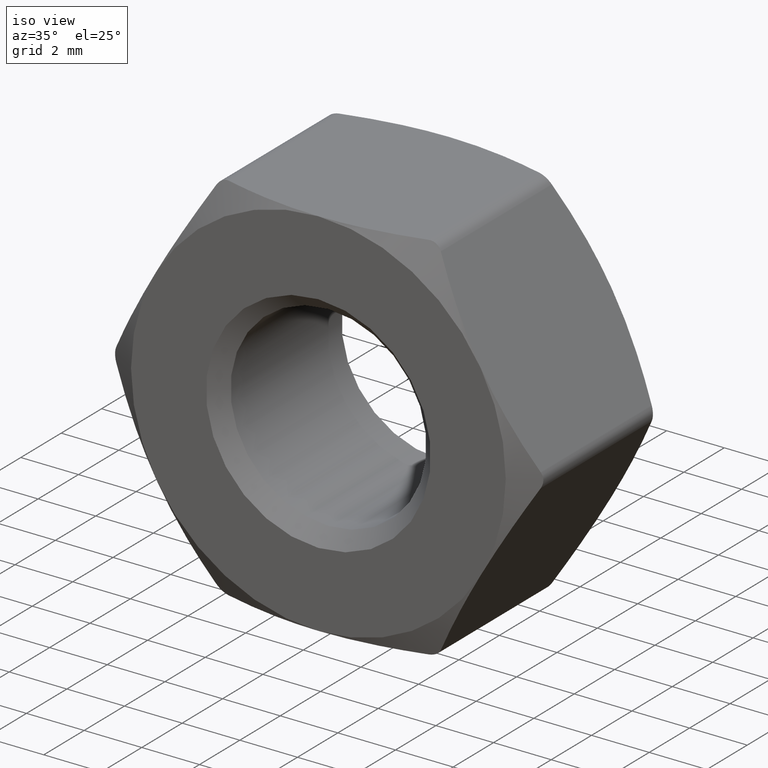
[diagram: clean part render]
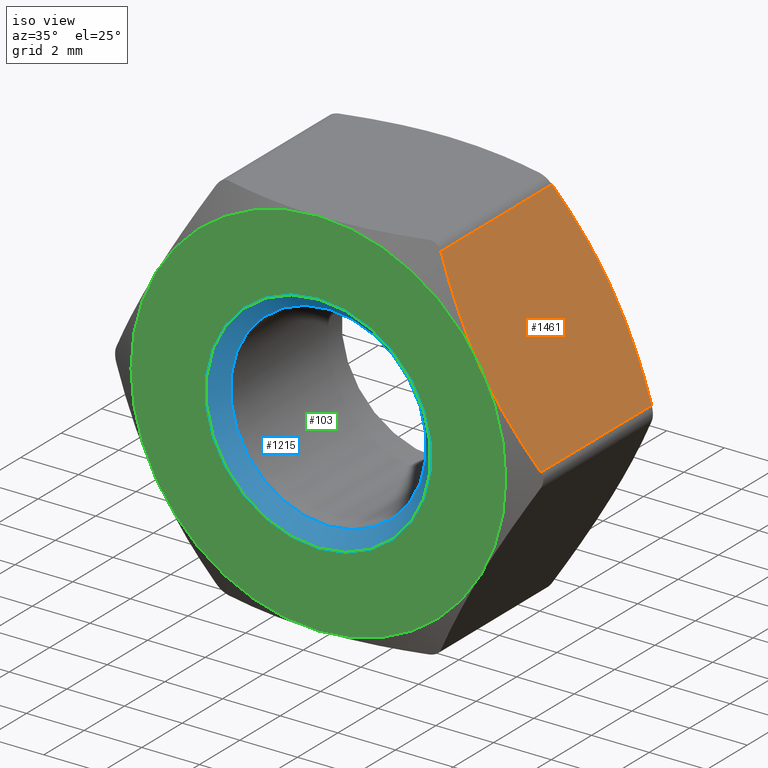
[diagram: same view with three faces highlighted in distinct colors, each labeled with its STEP entity id]
A machine part, iso view with three faces highlighted in distinct colors.
Their STEP definitions:

[orange] entity #1461 — the highlighted planar face has unit normal (-0.866, 0, -0.5).
#20 = EDGE_LOOP ( 'NONE', ( #233, #1431, #68, #1369, #69, #540 ) ) ;
#63 = CARTESIAN_POINT ( 'NONE',  ( 3.897114317028946000, -2.750326475674316700, 6.250000000001792300 ) ) ;
#68 = ORIENTED_EDGE ( 'NONE', *, *, #1031, .T. ) ;
#69 = ORIENTED_EDGE ( 'NONE', *, *, #1279, .T. ) ;
#82 = EDGE_CURVE ( 'NONE', #118, #971, #1128, .T. ) ;
#110 = CARTESIAN_POINT ( 'NONE',  ( 5.923365020047807400, -3.238358288205307000, 2.740430833500970800 ) ) ;
#114 = CARTESIAN_POINT ( 'NONE',  ( 5.629165124598850800, 3.249999999999999100, 3.249999999999999600 ) ) ;
#118 = VERTEX_POINT ( 'NONE', #144 ) ;
#126 = CARTESIAN_POINT ( 'NONE',  ( 6.218478719796789500, 3.250000000000000400, 2.229278911526101600 ) ) ;
#141 = CARTESIAN_POINT ( 'NONE',  ( 3.897114317029982000, 3.250000000000000000, 6.249999999999997300 ) ) ;
#144 = CARTESIAN_POINT ( 'NONE',  ( 5.629165124598850800, 3.249999999999999100, 3.249999999999999600 ) ) ;
#145 = DIRECTION ( 'NONE',  ( 0.0000000000000000000, -1.000000000000000000, 0.0000000000000000000 ) ) ;
#180 = VERTEX_POINT ( 'NONE', #1384 ) ;
#229 = CARTESIAN_POINT ( 'NONE',  ( 7.078287489049791300, -2.903977949313086600, 0.7400464383866343100 ) ) ;
#233 = ORIENTED_EDGE ( 'NONE', *, *, #1598, .T. ) ;
#239 = CARTESIAN_POINT ( 'NONE',  ( 6.360320613116885900, -3.159567907072293700, 1.983601545653930700 ) ) ;
#245 = CARTESIAN_POINT ( 'NONE',  ( 6.215272553528207800, -3.193121803873830700, 2.234832154400797000 ) ) ;
#268 = FACE_OUTER_BOUND ( 'NONE', #20, .T. ) ;
#366 = CARTESIAN_POINT ( 'NONE',  ( 6.794026904718143600, 3.058352876056135800, 1.232400213038266700 ) ) ;
#373 = CARTESIAN_POINT ( 'NONE',  ( 3.897114317029981600, 2.750326475674878900, 6.249999999999998200 ) ) ;
#386 = CARTESIAN_POINT ( 'NONE',  ( 4.898009636080826300, 3.159567907072293300, 4.516398454346075100 ) ) ;
#394 = CARTESIAN_POINT ( 'NONE',  ( 5.043057695669504300, 3.193121803873831200, 4.265167845599208400 ) ) ;
#396 = AXIS2_PLACEMENT_3D ( 'NONE', #676, #1571, #549 ) ;
#493 = B_SPLINE_CURVE_WITH_KNOTS ( 'NONE', 3,
 ( #1499, #585, #110, #245, #239, #1347, #229, #1243 ),
 .UNSPECIFIED., .F., .F.,
 ( 4, 2, 2, 4 ),
 ( 0.003797433802554433700, 0.004668978453557800500, 0.005540523104561167300, 0.007283612406567902700 ),
 .UNSPECIFIED. ) ;
#540 = ORIENTED_EDGE ( 'NONE', *, *, #1472, .T. ) ;
#549 = DIRECTION ( 'NONE',  ( -0.4999999999999997800, 0.0000000000000000000, 0.8660254037844387100 ) ) ;
#585 = CARTESIAN_POINT ( 'NONE',  ( 5.775913707290541800, -3.250000000000000000, 2.995823998839283400 ) ) ;
#599 = EDGE_CURVE ( 'NONE', #1112, #180, #1325, .T. ) ;
#629 = CARTESIAN_POINT ( 'NONE',  ( 3.897114317029981600, 2.750326475674878900, 6.249999999999998200 ) ) ;
#671 = CARTESIAN_POINT ( 'NONE',  ( 4.464303344479567700, -3.058352876056134900, 5.267599786961736400 ) ) ;
#676 = CARTESIAN_POINT ( 'NONE',  ( 3.752776749732575900, 3.250000000000000000, 6.499999999999997300 ) ) ;
#787 = B_SPLINE_CURVE_WITH_KNOTS ( 'NONE', 3,
 ( #1636, #366, #126, #114 ),
 .UNSPECIFIED., .F., .F.,
 ( 4, 4 ),
 ( 0.0002974810109325099900, 0.003797433802554438500 ),
 .UNSPECIFIED. ) ;
#894 = VECTOR ( 'NONE', #1566, 1000.000000000000000 ) ;
#915 = VECTOR ( 'NONE', #145, 1000.000000000000000 ) ;
#971 = VERTEX_POINT ( 'NONE', #373 ) ;
#1031 = EDGE_CURVE ( 'NONE', #180, #118, #787, .T. ) ;
#1043 = CARTESIAN_POINT ( 'NONE',  ( 3.897114317028946000, -2.750326475674316700, 6.250000000001792300 ) ) ;
#1056 = CARTESIAN_POINT ( 'NONE',  ( 5.629165124598850800, -3.249999999999999100, 3.249999999999999600 ) ) ;
#1061 = CARTESIAN_POINT ( 'NONE',  ( 5.039851529400921800, -3.249999999999999100, 4.270721088473902900 ) ) ;
#1112 = VERTEX_POINT ( 'NONE', #1502 ) ;
#1128 = B_SPLINE_CURVE_WITH_KNOTS ( 'NONE', 3,
 ( #1144, #1138, #1270, #394, #386, #1244, #1263, #629 ),
 .UNSPECIFIED., .F., .F.,
 ( 4, 2, 2, 4 ),
 ( 0.003797433802554438500, 0.004668978453557804000, 0.005540523104561170800, 0.007283612406567905300 ),
 .UNSPECIFIED. ) ;
#1138 = CARTESIAN_POINT ( 'NONE',  ( 5.482416541907172200, 3.250000000000002200, 3.504176001160724100 ) ) ;
#1144 = CARTESIAN_POINT ( 'NONE',  ( 5.629165124598850800, 3.249999999999999100, 3.249999999999999600 ) ) ;
#1243 = CARTESIAN_POINT ( 'NONE',  ( 7.361215932167731100, -2.750326475674879300, 0.2500000000000047200 ) ) ;
#1244 = CARTESIAN_POINT ( 'NONE',  ( 4.465291406935476100, 3.029614908576544300, 5.265888412587046700 ) ) ;
#1263 = CARTESIAN_POINT ( 'NONE',  ( 4.180042760147919100, 2.903977949313086600, 5.759953561613370400 ) ) ;
#1270 = CARTESIAN_POINT ( 'NONE',  ( 5.334965229149906600, 3.238358288205306600, 3.759569166499034900 ) ) ;
#1279 = EDGE_CURVE ( 'NONE', #971, #1450, #1592, .T. ) ;
#1306 = CARTESIAN_POINT ( 'NONE',  ( 7.361215932167731100, 3.250000000000000000, 0.2500000000000045500 ) ) ;
#1307 = PLANE ( 'NONE',  #396 ) ;
#1316 = CARTESIAN_POINT ( 'NONE',  ( 5.629165124598850800, -3.249999999999999100, 3.249999999999999600 ) ) ;
#1325 = LINE ( 'NONE', #1306, #894 ) ;
#1347 = CARTESIAN_POINT ( 'NONE',  ( 6.793038842262233400, -3.029614908576546500, 1.234111587412956200 ) ) ;
#1369 = ORIENTED_EDGE ( 'NONE', *, *, #82, .T. ) ;
#1384 = CARTESIAN_POINT ( 'NONE',  ( 7.361215932168766700, 2.750326475674317100, 0.2499999999982097700 ) ) ;
#1431 = ORIENTED_EDGE ( 'NONE', *, *, #599, .T. ) ;
#1450 = VERTEX_POINT ( 'NONE', #1043 ) ;
#1461 = ADVANCED_FACE ( 'NONE', ( #268 ), #1307, .F. ) ;
#1472 = EDGE_CURVE ( 'NONE', #1450, #1513, #1557, .T. ) ;
#1499 = CARTESIAN_POINT ( 'NONE',  ( 5.629165124598850800, -3.249999999999999100, 3.249999999999999600 ) ) ;
#1502 = CARTESIAN_POINT ( 'NONE',  ( 7.361215932167731100, -2.750326475674879300, 0.2500000000000047200 ) ) ;
#1513 = VERTEX_POINT ( 'NONE', #1056 ) ;
#1557 = B_SPLINE_CURVE_WITH_KNOTS ( 'NONE', 3,
 ( #63, #671, #1061, #1316 ),
 .UNSPECIFIED., .F., .F.,
 ( 4, 4 ),
 ( 0.0002974810109325080900, 0.003797433802554433700 ),
 .UNSPECIFIED. ) ;
#1566 = DIRECTION ( 'NONE',  ( -0.0000000000000000000, 1.000000000000000000, -0.0000000000000000000 ) ) ;
#1571 = DIRECTION ( 'NONE',  ( -0.8660254037844388200, 0.0000000000000000000, -0.4999999999999998300 ) ) ;
#1592 = LINE ( 'NONE', #141, #915 ) ;
#1598 = EDGE_CURVE ( 'NONE', #1513, #1112, #493, .T. ) ;
#1636 = CARTESIAN_POINT ( 'NONE',  ( 7.361215932168766700, 2.750326475674317100, 0.2499999999982097700 ) ) ;

[blue] entity #1215 — the highlighted conical surface has half-angle 45 deg.
#16 = VERTEX_POINT ( 'NONE', #364 ) ;
#48 = EDGE_LOOP ( 'NONE', ( #1492 ) ) ;
#94 = CIRCLE ( 'NONE', #124, 3.899999999999999500 ) ;
#124 = AXIS2_PLACEMENT_3D ( 'NONE', #439, #316, #1183 ) ;
#159 = ORIENTED_EDGE ( 'NONE', *, *, #1506, .F. ) ;
#246 = CONICAL_SURFACE ( 'NONE', #1588, 3.899999999999999500, 0.7853981633974466100 ) ;
#316 = DIRECTION ( 'NONE',  ( 0.0000000000000000000, 1.000000000000000000, 0.0000000000000000000 ) ) ;
#350 = FACE_BOUND ( 'NONE', #48, .T. ) ;
#364 = CARTESIAN_POINT ( 'NONE',  ( 0.0000000000000000000, -2.749999999999996900, 3.399999999999998100 ) ) ;
#439 = CARTESIAN_POINT ( 'NONE',  ( 0.0000000000000000000, -3.250000000000000000, 0.0000000000000000000 ) ) ;
#586 = VERTEX_POINT ( 'NONE', #721 ) ;
#721 = CARTESIAN_POINT ( 'NONE',  ( 0.0000000000000000000, -3.250000000000000000, 3.899999999999999500 ) ) ;
#822 = AXIS2_PLACEMENT_3D ( 'NONE', #1589, #1606, #962 ) ;
#872 = DIRECTION ( 'NONE',  ( -0.0000000000000000000, -1.000000000000000000, -0.0000000000000000000 ) ) ;
#882 = EDGE_CURVE ( 'NONE', #16, #16, #1575, .T. ) ;
#962 = DIRECTION ( 'NONE',  ( 0.0000000000000000000, 0.0000000000000000000, 1.000000000000000000 ) ) ;
#1039 = EDGE_LOOP ( 'NONE', ( #159 ) ) ;
#1183 = DIRECTION ( 'NONE',  ( 0.0000000000000000000, 0.0000000000000000000, 1.000000000000000000 ) ) ;
#1215 = ADVANCED_FACE ( 'NONE', ( #350, #1295 ), #246, .F. ) ;
#1295 = FACE_OUTER_BOUND ( 'NONE', #1039, .T. ) ;
#1395 = DIRECTION ( 'NONE',  ( 0.0000000000000000000, 0.0000000000000000000, -1.000000000000000000 ) ) ;
#1492 = ORIENTED_EDGE ( 'NONE', *, *, #882, .F. ) ;
#1506 = EDGE_CURVE ( 'NONE', #586, #586, #94, .T. ) ;
#1529 = CARTESIAN_POINT ( 'NONE',  ( 0.0000000000000000000, -3.250000000000000000, 0.0000000000000000000 ) ) ;
#1575 = CIRCLE ( 'NONE', #822, 3.399999999999998100 ) ;
#1588 = AXIS2_PLACEMENT_3D ( 'NONE', #1529, #872, #1395 ) ;
#1589 = CARTESIAN_POINT ( 'NONE',  ( 0.0000000000000000000, -2.749999999999996900, 0.0000000000000000000 ) ) ;
#1606 = DIRECTION ( 'NONE',  ( -0.0000000000000000000, -1.000000000000000000, -0.0000000000000000000 ) ) ;

[green] entity #103 — the highlighted planar face has unit normal (0, 1, 0).
#6 = PLANE ( 'NONE',  #546 ) ;
#8 = DIRECTION ( 'NONE',  ( -0.0000000000000000000, -1.000000000000000000, -0.0000000000000000000 ) ) ;
#43 = AXIS2_PLACEMENT_3D ( 'NONE', #1639, #1111, #603 ) ;
#46 = EDGE_LOOP ( 'NONE', ( #1576, #1059, #1233, #247, #1057, #1468 ) ) ;
#62 = FACE_OUTER_BOUND ( 'NONE', #46, .T. ) ;
#94 = CIRCLE ( 'NONE', #124, 3.899999999999999500 ) ;
#100 = AXIS2_PLACEMENT_3D ( 'NONE', #791, #535, #785 ) ;
#103 = ADVANCED_FACE ( 'NONE', ( #1594, #62 ), #6, .F. ) ;
#124 = AXIS2_PLACEMENT_3D ( 'NONE', #439, #316, #1183 ) ;
#138 = CIRCLE ( 'NONE', #1218, 6.499999999999997300 ) ;
#150 = CARTESIAN_POINT ( 'NONE',  ( -3.386450907888041400E-016, -3.250000000000000000, 1.173101005959981900E-015 ) ) ;
#153 = EDGE_CURVE ( 'NONE', #1314, #951, #138, .T. ) ;
#247 = ORIENTED_EDGE ( 'NONE', *, *, #941, .T. ) ;
#251 = VERTEX_POINT ( 'NONE', #1414 ) ;
#296 = CIRCLE ( 'NONE', #100, 6.499999999999997300 ) ;
#304 = EDGE_CURVE ( 'NONE', #251, #1315, #296, .T. ) ;
#316 = DIRECTION ( 'NONE',  ( 0.0000000000000000000, 1.000000000000000000, 0.0000000000000000000 ) ) ;
#343 = DIRECTION ( 'NONE',  ( 1.776356839400250500E-015, 0.0000000000000000000, 1.000000000000000000 ) ) ;
#398 = CARTESIAN_POINT ( 'NONE',  ( -5.629165124598849000, -3.249999999999998200, 3.250000000000001800 ) ) ;
#439 = CARTESIAN_POINT ( 'NONE',  ( 0.0000000000000000000, -3.250000000000000000, 0.0000000000000000000 ) ) ;
#503 = DIRECTION ( 'NONE',  ( -0.0000000000000000000, -1.000000000000000000, -0.0000000000000000000 ) ) ;
#505 = AXIS2_PLACEMENT_3D ( 'NONE', #606, #867, #846 ) ;
#535 = DIRECTION ( 'NONE',  ( -0.0000000000000000000, -1.000000000000000000, -0.0000000000000000000 ) ) ;
#546 = AXIS2_PLACEMENT_3D ( 'NONE', #865, #875, #1500 ) ;
#556 = CARTESIAN_POINT ( 'NONE',  ( -3.386450907888040000E-016, -3.249999999999998700, 6.499999999999999100 ) ) ;
#572 = EDGE_LOOP ( 'NONE', ( #989 ) ) ;
#586 = VERTEX_POINT ( 'NONE', #721 ) ;
#603 = DIRECTION ( 'NONE',  ( 1.000000000000000000, -1.334402673828313300E-016, 0.0000000000000000000 ) ) ;
#606 = CARTESIAN_POINT ( 'NONE',  ( -3.386450907888041400E-016, -3.250000000000000000, 1.173101005959981900E-015 ) ) ;
#611 = CIRCLE ( 'NONE', #1342, 6.499999999999997300 ) ;
#646 = DIRECTION ( 'NONE',  ( 0.0000000000000000000, 0.0000000000000000000, 1.000000000000000000 ) ) ;
#651 = CARTESIAN_POINT ( 'NONE',  ( 5.629165124598849900, -3.249999999999999100, -3.250000000000001300 ) ) ;
#659 = VERTEX_POINT ( 'NONE', #556 ) ;
#721 = CARTESIAN_POINT ( 'NONE',  ( 0.0000000000000000000, -3.250000000000000000, 3.899999999999999500 ) ) ;
#785 = DIRECTION ( 'NONE',  ( 1.776356839400250500E-015, 0.0000000000000000000, 1.000000000000000000 ) ) ;
#791 = CARTESIAN_POINT ( 'NONE',  ( -3.386450907888041400E-016, -3.250000000000000000, 1.173101005959981900E-015 ) ) ;
#814 = CIRCLE ( 'NONE', #43, 6.499999999999999100 ) ;
#835 = CARTESIAN_POINT ( 'NONE',  ( -5.629165124598851700, -3.249999999999998200, -3.249999999999998200 ) ) ;
#846 = DIRECTION ( 'NONE',  ( 0.0000000000000000000, 0.0000000000000000000, 1.000000000000000000 ) ) ;
#865 = CARTESIAN_POINT ( 'NONE',  ( 0.0000000000000000000, -3.250000000000000000, 0.0000000000000000000 ) ) ;
#867 = DIRECTION ( 'NONE',  ( -0.0000000000000000000, -1.000000000000000000, -0.0000000000000000000 ) ) ;
#875 = DIRECTION ( 'NONE',  ( 0.0000000000000000000, 1.000000000000000000, 0.0000000000000000000 ) ) ;
#941 = EDGE_CURVE ( 'NONE', #951, #251, #1409, .T. ) ;
#947 = CIRCLE ( 'NONE', #505, 6.499999999999997300 ) ;
#951 = VERTEX_POINT ( 'NONE', #835 ) ;
#958 = DIRECTION ( 'NONE',  ( -0.0000000000000000000, -1.000000000000000000, -0.0000000000000000000 ) ) ;
#976 = AXIS2_PLACEMENT_3D ( 'NONE', #1210, #958, #343 ) ;
#989 = ORIENTED_EDGE ( 'NONE', *, *, #1506, .T. ) ;
#1021 = EDGE_CURVE ( 'NONE', #659, #1314, #947, .T. ) ;
#1056 = CARTESIAN_POINT ( 'NONE',  ( 5.629165124598850800, -3.249999999999999100, 3.249999999999999600 ) ) ;
#1057 = ORIENTED_EDGE ( 'NONE', *, *, #304, .T. ) ;
#1059 = ORIENTED_EDGE ( 'NONE', *, *, #1021, .T. ) ;
#1111 = DIRECTION ( 'NONE',  ( -1.041984894734782400E-016, -1.000000000000000000, -0.0000000000000000000 ) ) ;
#1183 = DIRECTION ( 'NONE',  ( 0.0000000000000000000, 0.0000000000000000000, 1.000000000000000000 ) ) ;
#1210 = CARTESIAN_POINT ( 'NONE',  ( -3.386450907888041400E-016, -3.250000000000000000, 1.173101005959981900E-015 ) ) ;
#1218 = AXIS2_PLACEMENT_3D ( 'NONE', #1505, #503, #1390 ) ;
#1233 = ORIENTED_EDGE ( 'NONE', *, *, #153, .T. ) ;
#1309 = EDGE_CURVE ( 'NONE', #1315, #1513, #611, .T. ) ;
#1314 = VERTEX_POINT ( 'NONE', #398 ) ;
#1315 = VERTEX_POINT ( 'NONE', #651 ) ;
#1342 = AXIS2_PLACEMENT_3D ( 'NONE', #150, #8, #646 ) ;
#1390 = DIRECTION ( 'NONE',  ( 0.0000000000000000000, 0.0000000000000000000, 1.000000000000000000 ) ) ;
#1409 = CIRCLE ( 'NONE', #976, 6.499999999999997300 ) ;
#1414 = CARTESIAN_POINT ( 'NONE',  ( -3.386450907888040000E-016, -3.249999999999998700, -6.499999999999999100 ) ) ;
#1468 = ORIENTED_EDGE ( 'NONE', *, *, #1309, .T. ) ;
#1500 = DIRECTION ( 'NONE',  ( 0.0000000000000000000, -0.0000000000000000000, 1.000000000000000000 ) ) ;
#1505 = CARTESIAN_POINT ( 'NONE',  ( -3.386450907888041400E-016, -3.250000000000000000, 1.173101005959981900E-015 ) ) ;
#1506 = EDGE_CURVE ( 'NONE', #586, #586, #94, .T. ) ;
#1513 = VERTEX_POINT ( 'NONE', #1056 ) ;
#1568 = EDGE_CURVE ( 'NONE', #1513, #659, #814, .T. ) ;
#1576 = ORIENTED_EDGE ( 'NONE', *, *, #1568, .T. ) ;
#1594 = FACE_BOUND ( 'NONE', #572, .T. ) ;
#1639 = CARTESIAN_POINT ( 'NONE',  ( -3.386450907888041400E-016, -3.249999999999998700, 0.0000000000000000000 ) ) ;